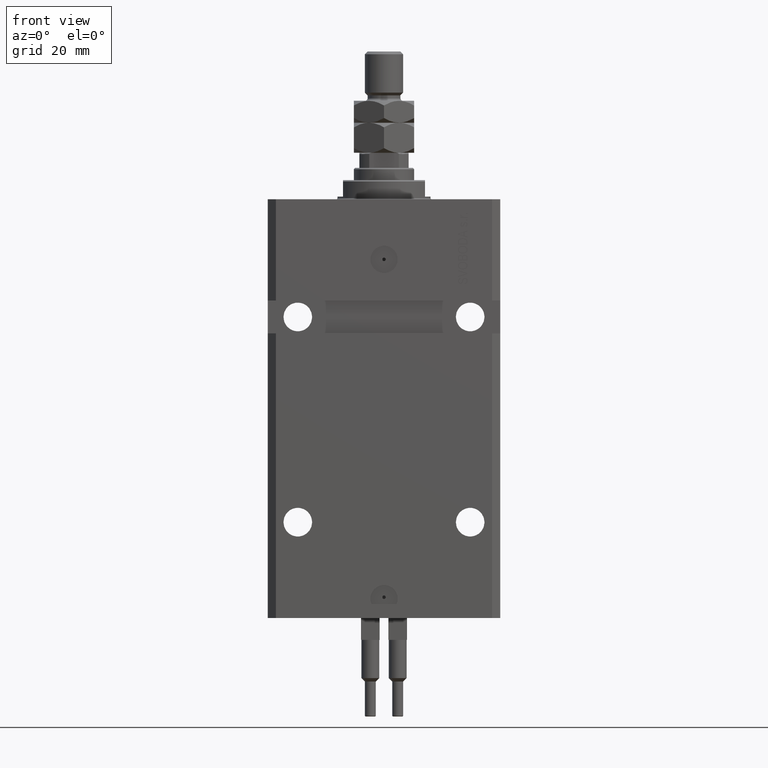
[diagram: clean part render]
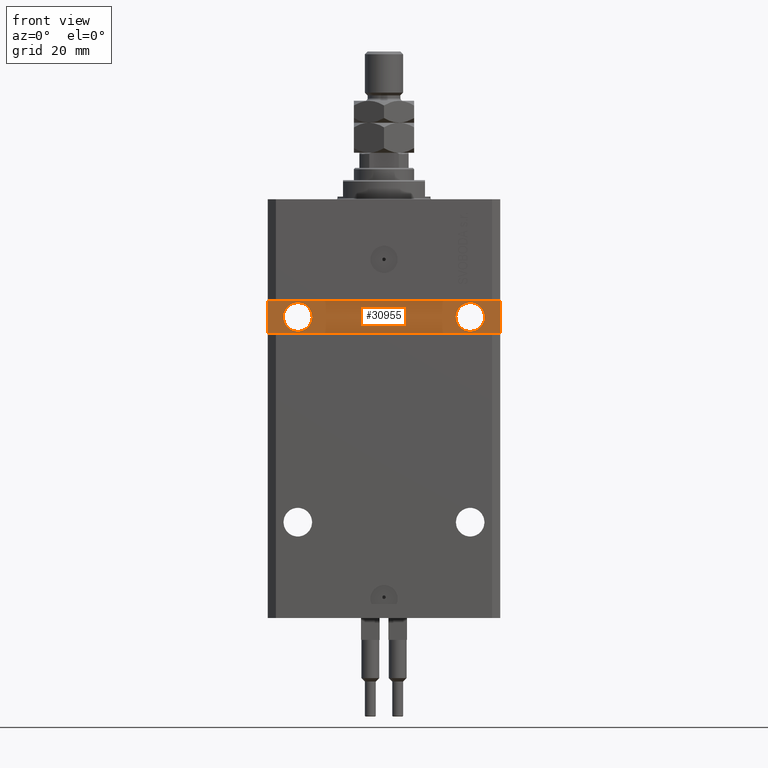
[diagram: same view with one face highlighted and labeled with its STEP entity id]
A machine part, front view. The second image highlights one B-rep face of the part: STEP entity #30955.
In plain terms, the highlighted planar face has unit normal (0, -1, 0).
Its self-contained STEP definition (entity closure, byte-faithful):
#532 = DIRECTION ( 'NONE',  ( 1.000000000000000000, 1.632680918566406054E-16, 0.000000000000000000 ) ) ;
#1399 = VECTOR ( 'NONE', #39320, 1000.000000000000000 ) ;
#1458 = CARTESIAN_POINT ( 'NONE',  ( 31.50000000000001421, -28.49999999999999645, -43.00000000000000000 ) ) ;
#1522 = VERTEX_POINT ( 'NONE', #49185 ) ;
#2536 = VERTEX_POINT ( 'NONE', #41384 ) ;
#2633 = DIRECTION ( 'NONE',  ( 1.000000000000000000, 1.632680918566406054E-16, 1.632680918566406054E-16 ) ) ;
#5380 = LINE ( 'NONE', #29906, #46755 ) ;
#7234 = ORIENTED_EDGE ( 'NONE', *, *, #25262, .F. ) ;
#8877 = CARTESIAN_POINT ( 'NONE',  ( -26.24999999999998934, -28.50000000000000355, -43.00000000000000000 ) ) ;
#9279 = DIRECTION ( 'NONE',  ( 1.632680918566406054E-16, -1.000000000000000000, 0.000000000000000000 ) ) ;
#9373 = DIRECTION ( 'NONE',  ( 1.037025423586453576E-16, -1.000000000000000000, 0.000000000000000000 ) ) ;
#9495 = CIRCLE ( 'NONE', #41647, 5.249999999999997335 ) ;
#10123 = EDGE_CURVE ( 'NONE', #1522, #15611, #20205, .T. ) ;
#10972 = ORIENTED_EDGE ( 'NONE', *, *, #47109, .F. ) ;
#10975 = AXIS2_PLACEMENT_3D ( 'NONE', #44168, #35652, #15798 ) ;
#11857 = CIRCLE ( 'NONE', #40702, 5.249999999999997335 ) ;
#11979 = LINE ( 'NONE', #20481, #32889 ) ;
#12301 = VERTEX_POINT ( 'NONE', #17552 ) ;
#12657 = FACE_BOUND ( 'NONE', #46033, .T. ) ;
#13755 = ORIENTED_EDGE ( 'NONE', *, *, #21759, .F. ) ;
#13869 = VECTOR ( 'NONE', #2633, 1000.000000000000000 ) ;
#15526 = CARTESIAN_POINT ( 'NONE',  ( 36.75000000000001421, -28.49999999999999645, -43.00000000000000000 ) ) ;
#15611 = VERTEX_POINT ( 'NONE', #44798 ) ;
#15798 = DIRECTION ( 'NONE',  ( 1.000000000000000000, 0.000000000000000000, 0.000000000000000000 ) ) ;
#16151 = CARTESIAN_POINT ( 'NONE',  ( -31.49999999999998579, -28.50000000000000355, -43.00000000000000000 ) ) ;
#16926 = VERTEX_POINT ( 'NONE', #8877 ) ;
#17141 = DIRECTION ( 'NONE',  ( 1.000000000000000000, 0.000000000000000000, 0.000000000000000000 ) ) ;
#17213 = DIRECTION ( 'NONE',  ( 1.037025423586453576E-16, -1.000000000000000000, 0.000000000000000000 ) ) ;
#17552 = CARTESIAN_POINT ( 'NONE',  ( 26.25000000000001776, -28.49999999999999645, -43.00000000000000000 ) ) ;
#18050 = DIRECTION ( 'NONE',  ( 0.000000000000000000, 0.000000000000000000, 1.000000000000000000 ) ) ;
#18623 = VERTEX_POINT ( 'NONE', #15526 ) ;
#19891 = CARTESIAN_POINT ( 'NONE',  ( 4.790119779726142858E-15, -28.50000000000000000, 0.000000000000000000 ) ) ;
#20153 = PLANE ( 'NONE',  #41859 ) ;
#20205 = LINE ( 'NONE', #31555, #1399 ) ;
#20481 = CARTESIAN_POINT ( 'NONE',  ( -42.50000000000001421, -28.50000000000000711, -37.00000000000000711 ) ) ;
#21499 = CARTESIAN_POINT ( 'NONE',  ( 31.50000000000001421, -28.49999999999999645, -43.00000000000000000 ) ) ;
#21759 = EDGE_CURVE ( 'NONE', #27864, #16926, #35698, .T. ) ;
#22249 = LINE ( 'NONE', #38260, #13869 ) ;
#24140 = DIRECTION ( 'NONE',  ( 1.000000000000000000, 0.000000000000000000, 0.000000000000000000 ) ) ;
#25262 = EDGE_CURVE ( 'NONE', #18623, #12301, #9495, .T. ) ;
#25754 = AXIS2_PLACEMENT_3D ( 'NONE', #16151, #48638, #24140 ) ;
#27035 = VERTEX_POINT ( 'NONE', #38384 ) ;
#27864 = VERTEX_POINT ( 'NONE', #45425 ) ;
#29906 = CARTESIAN_POINT ( 'NONE',  ( 42.50000000000001421, -28.49999999999999289, -48.99999999999997868 ) ) ;
#30385 = EDGE_LOOP ( 'NONE', ( #7234, #10972 ) ) ;
#30725 = EDGE_CURVE ( 'NONE', #27035, #2536, #22249, .T. ) ;
#30955 = ADVANCED_FACE ( 'NONE', ( #40033, #12657, #47764 ), #20153, .T. ) ;
#31555 = CARTESIAN_POINT ( 'NONE',  ( 42.50000000000001421, -28.49999999999999289, -37.00000000000000000 ) ) ;
#31564 = ORIENTED_EDGE ( 'NONE', *, *, #10123, .T. ) ;
#32889 = VECTOR ( 'NONE', #47847, 1000.000000000000000 ) ;
#33349 = EDGE_CURVE ( 'NONE', #2536, #1522, #5380, .T. ) ;
#35652 = DIRECTION ( 'NONE',  ( 1.101411730780568590E-16, -1.000000000000000000, 0.000000000000000000 ) ) ;
#35698 = CIRCLE ( 'NONE', #10975, 5.249999999999997335 ) ;
#37285 = EDGE_CURVE ( 'NONE', #15611, #27035, #11979, .T. ) ;
#38260 = CARTESIAN_POINT ( 'NONE',  ( -42.50000000000001421, -28.50000000000000711, -48.99999999999999289 ) ) ;
#38384 = CARTESIAN_POINT ( 'NONE',  ( -42.50000000000001421, -28.50000000000000711, -48.99999999999999289 ) ) ;
#38969 = ORIENTED_EDGE ( 'NONE', *, *, #43442, .F. ) ;
#39320 = DIRECTION ( 'NONE',  ( -1.000000000000000000, -1.632680918566406054E-16, -8.163404592832030268E-17 ) ) ;
#40033 = FACE_BOUND ( 'NONE', #30385, .T. ) ;
#40228 = EDGE_LOOP ( 'NONE', ( #47551, #46389, #31564, #41395 ) ) ;
#40702 = AXIS2_PLACEMENT_3D ( 'NONE', #21499, #9373, #17141 ) ;
#41384 = CARTESIAN_POINT ( 'NONE',  ( 42.50000000000001421, -28.49999999999999289, -48.99999999999997868 ) ) ;
#41395 = ORIENTED_EDGE ( 'NONE', *, *, #37285, .T. ) ;
#41647 = AXIS2_PLACEMENT_3D ( 'NONE', #1458, #17213, #44817 ) ;
#41859 = AXIS2_PLACEMENT_3D ( 'NONE', #19891, #9279, #532 ) ;
#43442 = EDGE_CURVE ( 'NONE', #16926, #27864, #43864, .T. ) ;
#43864 = CIRCLE ( 'NONE', #25754, 5.249999999999997335 ) ;
#44168 = CARTESIAN_POINT ( 'NONE',  ( -31.49999999999998579, -28.50000000000000355, -43.00000000000000000 ) ) ;
#44798 = CARTESIAN_POINT ( 'NONE',  ( -42.50000000000001421, -28.50000000000000711, -37.00000000000000711 ) ) ;
#44817 = DIRECTION ( 'NONE',  ( 1.000000000000000000, 0.000000000000000000, 0.000000000000000000 ) ) ;
#45425 = CARTESIAN_POINT ( 'NONE',  ( -36.74999999999998579, -28.50000000000000355, -43.00000000000000000 ) ) ;
#46033 = EDGE_LOOP ( 'NONE', ( #38969, #13755 ) ) ;
#46389 = ORIENTED_EDGE ( 'NONE', *, *, #33349, .T. ) ;
#46755 = VECTOR ( 'NONE', #18050, 1000.000000000000000 ) ;
#47109 = EDGE_CURVE ( 'NONE', #12301, #18623, #11857, .T. ) ;
#47551 = ORIENTED_EDGE ( 'NONE', *, *, #30725, .T. ) ;
#47764 = FACE_OUTER_BOUND ( 'NONE', #40228, .T. ) ;
#47847 = DIRECTION ( 'NONE',  ( 0.000000000000000000, 0.000000000000000000, -1.000000000000000000 ) ) ;
#48638 = DIRECTION ( 'NONE',  ( 1.101411730780568590E-16, -1.000000000000000000, 0.000000000000000000 ) ) ;
#49185 = CARTESIAN_POINT ( 'NONE',  ( 42.50000000000001421, -28.49999999999999289, -37.00000000000000000 ) ) ;